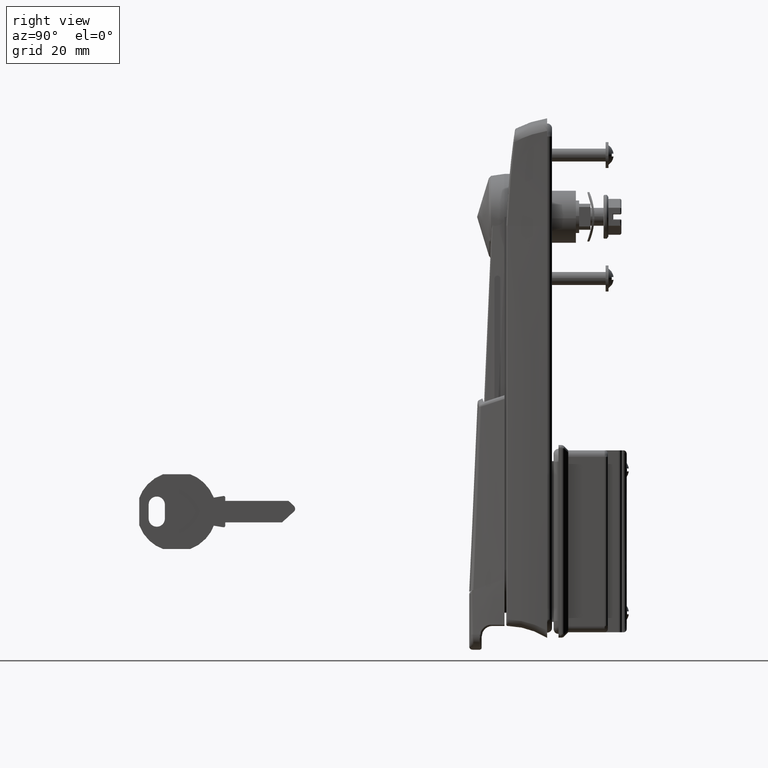
[diagram: clean part render]
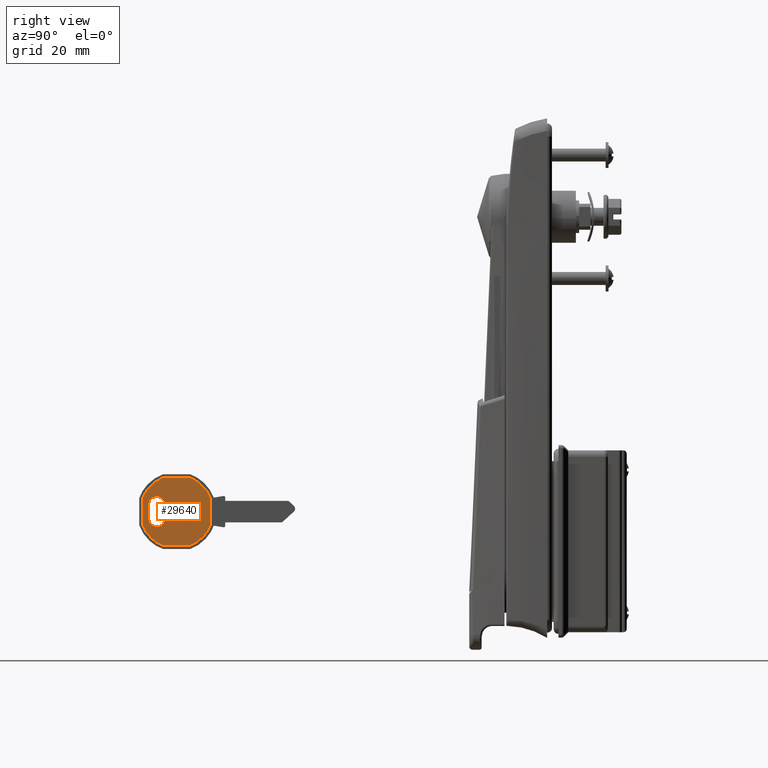
[diagram: same view with one face highlighted and labeled with its STEP entity id]
A machine part, right view. The second image highlights one B-rep face of the part: STEP entity #29640.
In plain terms, the highlighted face is a freeform B-spline surface patch.
Its self-contained STEP definition (entity closure, byte-faithful):
#29277=CARTESIAN_POINT('',(-124.609687166642400,-2.399999999999960,-86.761132271277589));
#29278=VERTEX_POINT('',#29277);
#29284=CARTESIAN_POINT('',(-118.148560426441410,-2.399999999999960,-80.300005531083201));
#29285=VERTEX_POINT('',#29284);
#29286=CARTESIAN_POINT('',(-118.148560426441410,-2.399999999999960,-80.300005531083215));
#29287=CARTESIAN_POINT('',(-122.814797485625990,-2.399999999999960,-82.094895212094855));
#29288=CARTESIAN_POINT('',(-124.609687166637500,-2.399999999999960,-86.761132271279479));
#29296=(BOUNDED_CURVE()B_SPLINE_CURVE(2,(#29286,#29287,#29288),.UNSPECIFIED.,.F.,.U.)CURVE()GEOMETRIC_REPRESENTATION_ITEM()QUASI_UNIFORM_CURVE()RATIONAL_B_SPLINE_CURVE((1.0,0.913825432318336,1.0))REPRESENTATION_ITEM(''));
#29297=EDGE_CURVE('',#29285,#29278,#29296,.T.);
#29319=CARTESIAN_POINT('',(-124.609687166637400,-2.399999999999960,-94.838879883318896));
#29320=VERTEX_POINT('',#29319);
#29326=CARTESIAN_POINT('',(-124.609687166637400,-2.399999999999960,-94.838879883318896));
#29327=CARTESIAN_POINT('',(-124.609687166642400,-2.399999999999960,-86.761132271277589));
#29328=QUASI_UNIFORM_CURVE('',1,(#29326,#29327),.UNSPECIFIED.,.F.,.U.);
#29329=EDGE_CURVE('',#29320,#29278,#29328,.T.);
#29364=CARTESIAN_POINT('',(-118.148560426443000,-2.399999999999960,-101.300006623519810));
#29365=VERTEX_POINT('',#29364);
#29371=CARTESIAN_POINT('',(-124.609687166637400,-2.399999999999960,-94.838879883318867));
#29372=CARTESIAN_POINT('',(-122.814797485625660,-2.399999999999960,-99.505116942503392));
#29373=CARTESIAN_POINT('',(-118.148560426441090,-2.399999999999960,-101.300006623514900));
#29381=(BOUNDED_CURVE()B_SPLINE_CURVE(2,(#29371,#29372,#29373),.UNSPECIFIED.,.F.,.U.)CURVE()GEOMETRIC_REPRESENTATION_ITEM()QUASI_UNIFORM_CURVE()RATIONAL_B_SPLINE_CURVE((1.0,0.913825432318337,1.0))REPRESENTATION_ITEM(''));
#29382=EDGE_CURVE('',#29320,#29365,#29381,.T.);
#29400=CARTESIAN_POINT('',(-110.070812814402000,-2.399999999999960,-101.300006623515000));
#29401=VERTEX_POINT('',#29400);
#29407=CARTESIAN_POINT('',(-110.070812814402000,-2.399999999999960,-101.300006623515000));
#29408=CARTESIAN_POINT('',(-118.148560426443000,-2.399999999999960,-101.300006623519810));
#29409=QUASI_UNIFORM_CURVE('',1,(#29407,#29408),.UNSPECIFIED.,.F.,.U.);
#29410=EDGE_CURVE('',#29401,#29365,#29409,.T.);
#29445=CARTESIAN_POINT('',(-103.609686074200990,-2.399999999999960,-94.838879883320288));
#29446=VERTEX_POINT('',#29445);
#29452=CARTESIAN_POINT('',(-110.070812814402000,-2.399999999999960,-101.300006623514900));
#29453=CARTESIAN_POINT('',(-105.404575755217250,-2.399999999999960,-99.505116942503278));
#29454=CARTESIAN_POINT('',(-103.609686074205700,-2.399999999999960,-94.838879883318498));
#29462=(BOUNDED_CURVE()B_SPLINE_CURVE(2,(#29452,#29453,#29454),.UNSPECIFIED.,.F.,.U.)CURVE()GEOMETRIC_REPRESENTATION_ITEM()QUASI_UNIFORM_CURVE()RATIONAL_B_SPLINE_CURVE((1.0,0.913825432318331,1.0))REPRESENTATION_ITEM(''));
#29463=EDGE_CURVE('',#29401,#29446,#29462,.T.);
#29481=CARTESIAN_POINT('',(-103.609686074206000,-2.399999999999960,-86.761132271278996));
#29482=VERTEX_POINT('',#29481);
#29488=CARTESIAN_POINT('',(-103.609686074206000,-2.399999999999960,-86.761132271278996));
#29489=CARTESIAN_POINT('',(-103.609686074200990,-2.399999999999960,-94.838879883320288));
#29490=QUASI_UNIFORM_CURVE('',1,(#29488,#29489),.UNSPECIFIED.,.F.,.U.);
#29491=EDGE_CURVE('',#29482,#29446,#29490,.T.);
#29526=CARTESIAN_POINT('',(-110.070812814402000,-2.399999999999960,-80.300005531083087));
#29527=VERTEX_POINT('',#29526);
#29533=CARTESIAN_POINT('',(-103.609686074205900,-2.399999999999960,-86.761132271278939));
#29534=CARTESIAN_POINT('',(-105.404575755217540,-2.399999999999960,-82.094895212094571));
#29535=CARTESIAN_POINT('',(-110.070812814402000,-2.399999999999960,-80.300005531083087));
#29543=(BOUNDED_CURVE()B_SPLINE_CURVE(2,(#29533,#29534,#29535),.UNSPECIFIED.,.F.,.U.)CURVE()GEOMETRIC_REPRESENTATION_ITEM()QUASI_UNIFORM_CURVE()RATIONAL_B_SPLINE_CURVE((1.0,0.913825432318342,1.0))REPRESENTATION_ITEM(''));
#29544=EDGE_CURVE('',#29482,#29527,#29543,.T.);
#29561=CARTESIAN_POINT('',(-118.148560426441410,-2.399999999999960,-80.300005531083201));
#29562=CARTESIAN_POINT('',(-110.070812814402000,-2.399999999999960,-80.300005531083087));
#29563=QUASI_UNIFORM_CURVE('',1,(#29561,#29562),.UNSPECIFIED.,.F.,.U.);
#29564=EDGE_CURVE('',#29285,#29527,#29563,.T.);
#29570=CARTESIAN_POINT('',(-125.658637180507800,-2.400000000000000,-79.251055517217949));
#29571=CARTESIAN_POINT('',(-102.560735497071700,-2.400000000000000,-79.251055517217949));
#29572=CARTESIAN_POINT('',(-125.658637180507800,-2.400000000000000,-102.348957200648900));
#29573=CARTESIAN_POINT('',(-102.560735497071700,-2.400000000000000,-102.348957200648900));
#29574=B_SPLINE_SURFACE_WITH_KNOTS('',1,1,((#29570,#29572),(#29571,#29573)),.UNSPECIFIED.,.F.,.F.,.U.,(2,2),(2,2),(0.0,23.097901683436049),(0.0,23.097901683430919),.UNSPECIFIED.);
#29575=ORIENTED_EDGE('',*,*,#29564,.F.);
#29576=ORIENTED_EDGE('',*,*,#29297,.T.);
#29577=ORIENTED_EDGE('',*,*,#29329,.F.);
#29578=ORIENTED_EDGE('',*,*,#29382,.T.);
#29579=ORIENTED_EDGE('',*,*,#29410,.F.);
#29580=ORIENTED_EDGE('',*,*,#29463,.T.);
#29581=ORIENTED_EDGE('',*,*,#29491,.F.);
#29582=ORIENTED_EDGE('',*,*,#29544,.T.);
#29583=EDGE_LOOP('',(#29575,#29576,#29577,#29578,#29579,#29580,#29581,#29582));
#29584=FACE_OUTER_BOUND('',#29583,.T.);
#29585=CARTESIAN_POINT('',(-117.709686791412390,-2.399999999999960,-92.950006179418494));
#29586=VERTEX_POINT('',#29585);
#29587=CARTESIAN_POINT('',(-122.709691797429400,-2.399999999999960,-92.950006179418494));
#29588=VERTEX_POINT('',#29587);
#29589=CARTESIAN_POINT('',(-117.709686791412390,-2.399999999999960,-92.950006179418494));
#29590=CARTESIAN_POINT('',(-117.709222540533600,-2.399999999999957,-93.297771546346297));
#29591=CARTESIAN_POINT('',(-117.831200653879310,-2.399999999999966,-93.870033381330472));
#29592=CARTESIAN_POINT('',(-118.296754687912400,-2.399999999999944,-94.625787964522019));
#29593=CARTESIAN_POINT('',(-118.837861675714000,-2.399999999999983,-95.081161467674320));
#29594=CARTESIAN_POINT('',(-119.458097065905410,-2.399999999999945,-95.355778282755907));
#29595=CARTESIAN_POINT('',(-120.125039671417700,-2.399999999999948,-95.488687706210044));
#29596=CARTESIAN_POINT('',(-120.827871962540600,-2.399999999999980,-95.410760652538016));
#29597=CARTESIAN_POINT('',(-121.451969474781510,-2.399999999999938,-95.142979867312107));
#29598=CARTESIAN_POINT('',(-121.885605431586200,-2.399999999999972,-94.829551406519769));
#29599=CARTESIAN_POINT('',(-122.299791206836010,-2.399999999999956,-94.372750714866669));
#29600=CARTESIAN_POINT('',(-122.624105553971900,-2.399999999999965,-93.747598472118341));
#29601=CARTESIAN_POINT('',(-122.709826954854190,-2.399999999999932,-93.215881135761677));
#29602=CARTESIAN_POINT('',(-122.709691797429400,-2.399999999999960,-92.950006179418494));
#29603=B_SPLINE_CURVE_WITH_KNOTS('',3,(#29589,#29590,#29591,#29592,#29593,#29594,#29595,#29596,#29597,#29598,#29599,#29600,#29601,#29602),.UNSPECIFIED.,.F.,.U.,(4,1,1,1,1,1,1,1,1,1,1,4),(0.000000708797065,1.043070864271483,1.718090135254982,2.638568956772785,3.129484304700267,3.743116432548052,4.663339547440121,5.215648877615618,5.767911443918143,6.258832084508643,7.056567312592662,7.854182841100249),.UNSPECIFIED.);
#29604=EDGE_CURVE('',#29586,#29588,#29603,.T.);
#29605=ORIENTED_EDGE('',*,*,#29604,.T.);
#29606=CARTESIAN_POINT('',(-122.709687028899590,-2.399999999999960,-88.650005975179496));
#29607=VERTEX_POINT('',#29606);
#29608=CARTESIAN_POINT('',(-122.709687028899590,-2.399999999999960,-88.650005975179496));
#29609=CARTESIAN_POINT('',(-122.709691797429400,-2.399999999999960,-92.950006179418494));
#29610=QUASI_UNIFORM_CURVE('',1,(#29608,#29609),.UNSPECIFIED.,.F.,.U.);
#29611=EDGE_CURVE('',#29607,#29588,#29610,.T.);
#29612=ORIENTED_EDGE('',*,*,#29611,.F.);
#29613=CARTESIAN_POINT('',(-117.709686791412390,-2.399999999999960,-88.650005975179496));
#29614=VERTEX_POINT('',#29613);
#29615=CARTESIAN_POINT('',(-122.709687028899590,-2.399999999999960,-88.650005975179496));
#29616=CARTESIAN_POINT('',(-122.710150455984110,-2.399999999999962,-88.302226074755239));
#29617=CARTESIAN_POINT('',(-122.609960964884390,-2.399999999999960,-87.832188811546800));
#29618=CARTESIAN_POINT('',(-122.300476437734500,-2.399999999999960,-87.253420769937264));
#29619=CARTESIAN_POINT('',(-121.991880949720600,-2.399999999999968,-86.867829865110721));
#29620=CARTESIAN_POINT('',(-121.461781854689700,-2.399999999999952,-86.443246554907716));
#29621=CARTESIAN_POINT('',(-120.747161254564600,-2.399999999999976,-86.157460209531195));
#29622=CARTESIAN_POINT('',(-119.981223027859600,-2.399999999999941,-86.129460145100410));
#29623=CARTESIAN_POINT('',(-119.360599449980700,-2.400000000000003,-86.276920586056960));
#29624=CARTESIAN_POINT('',(-118.824274932004300,-2.399999999999877,-86.538649062672107));
#29625=CARTESIAN_POINT('',(-118.382046494227890,-2.400000000000008,-86.910717064955335));
#29626=CARTESIAN_POINT('',(-118.014770854143510,-2.399999999999888,-87.406003563487644));
#29627=CARTESIAN_POINT('',(-117.770794911648910,-2.400000000000140,-87.975087873537888));
#29628=CARTESIAN_POINT('',(-117.709624498122910,-2.399999999999813,-88.425025885525159));
#29629=CARTESIAN_POINT('',(-117.709686791412390,-2.399999999999960,-88.650005975179496));
#29630=B_SPLINE_CURVE_WITH_KNOTS('',3,(#29615,#29616,#29617,#29618,#29619,#29620,#29621,#29622,#29623,#29624,#29625,#29626,#29627,#29628,#29629),.UNSPECIFIED.,.F.,.U.,(4,1,1,1,1,1,1,1,1,1,1,1,4),(0.000000709840754,1.043070367862899,1.411286925439732,1.963550805687738,2.515804471537182,3.436299600079685,4.233870031465488,4.786137972291700,5.338350216032588,6.013368556745640,6.504288847406682,7.179230616891138,7.854179095811721),.UNSPECIFIED.);
#29631=EDGE_CURVE('',#29607,#29614,#29630,.T.);
#29632=ORIENTED_EDGE('',*,*,#29631,.T.);
#29633=CARTESIAN_POINT('',(-117.709686791412390,-2.399999999999960,-92.950006179418494));
#29634=CARTESIAN_POINT('',(-117.709686791412390,-2.399999999999960,-88.650005975179496));
#29635=QUASI_UNIFORM_CURVE('',1,(#29633,#29634),.UNSPECIFIED.,.F.,.U.);
#29636=EDGE_CURVE('',#29586,#29614,#29635,.T.);
#29637=ORIENTED_EDGE('',*,*,#29636,.F.);
#29638=EDGE_LOOP('',(#29605,#29612,#29632,#29637));
#29639=FACE_BOUND('',#29638,.T.);
#29640=ADVANCED_FACE('',(#29584,#29639),#29574,.F.);